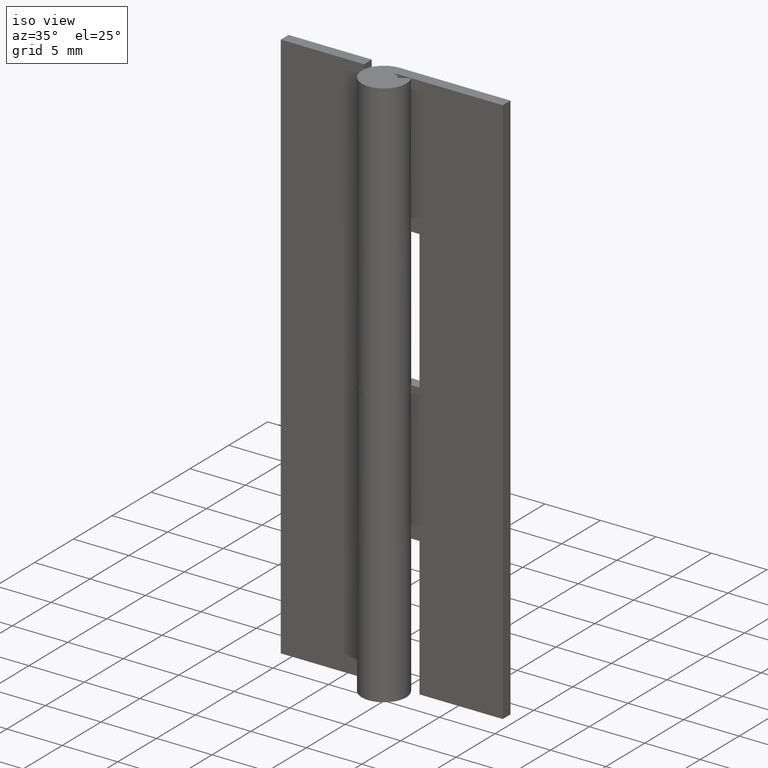
[diagram: clean part render]
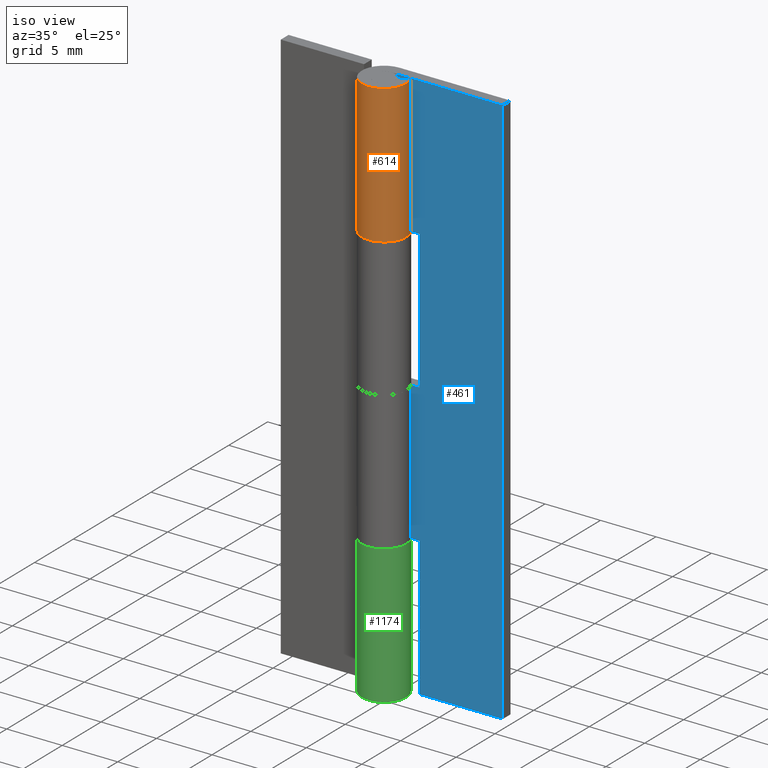
[diagram: same view with three faces highlighted in distinct colors, each labeled with its STEP entity id]
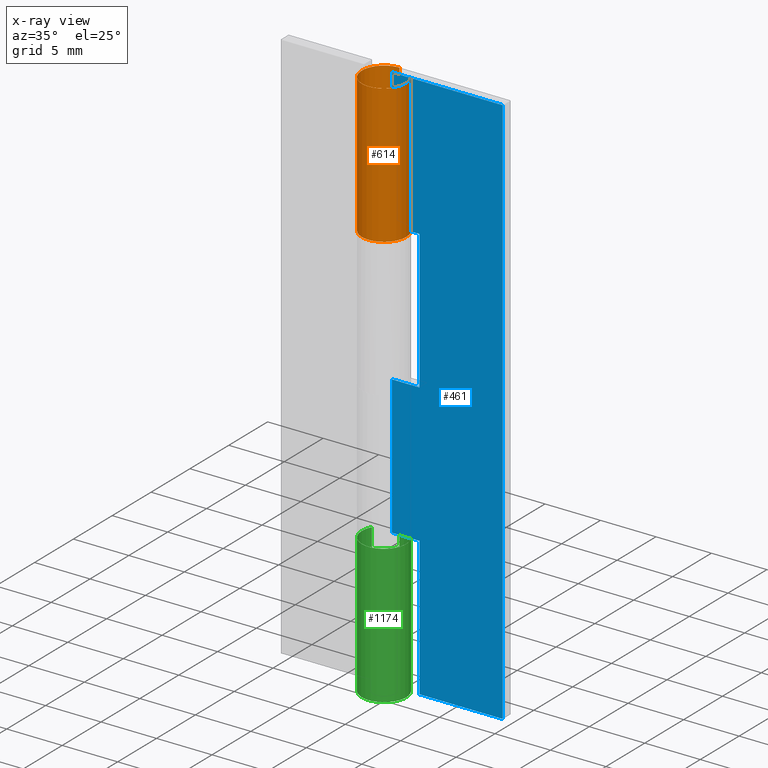
[diagram: x-ray of the same camera — body ghosted, the three highlighted faces saturated]
A machine part, iso view with three faces highlighted in distinct colors.
The next image is the same camera in x-ray (body ghosted, the three faces saturated) — at least one of them is partly hidden behind the body in this view.
Their STEP definitions:

[orange] entity #614 — the highlighted face is a freeform B-spline surface patch.
#49=CARTESIAN_POINT('',(0.0,2.0,37.500000000000000));
#50=VERTEX_POINT('',#49);
#93=CARTESIAN_POINT('',(1.759971590679805,0.950000000000000,37.500000000000000));
#94=VERTEX_POINT('',#93);
#100=CARTESIAN_POINT('',(0.0,2.0,37.500000000000000));
#101=CARTESIAN_POINT('',(-1.523311426391113,2.000000000000000,37.500000000000000));
#102=CARTESIAN_POINT('',(-1.928096575312494,0.531454227820452,37.500000000000000));
#103=CARTESIAN_POINT('',(-2.332881724233875,-0.937091544359096,37.500000000000000));
#104=CARTESIAN_POINT('',(-1.024695076595960,-1.717556403731767,37.500000000000000));
#105=CARTESIAN_POINT('',(0.283491571041954,-2.498021263104437,37.500000000000000));
#106=CARTESIAN_POINT('',(1.383518044628768,-1.444256840103792,37.500000000000000));
#107=CARTESIAN_POINT('',(2.483544518215583,-0.390492417103146,37.500000000000000));
#108=CARTESIAN_POINT('',(1.759971590679805,0.949999999999999,37.500000000000000));
#116=(BOUNDED_CURVE()B_SPLINE_CURVE(2,(#100,#101,#102,#103,#104,#105,#106,#107,#108),.UNSPECIFIED.,.F.,.U.)B_SPLINE_CURVE_WITH_KNOTS((3,2,2,2,3),(0.0,0.250000000000000,0.500000000000000,0.750000000000000,1.0),.UNSPECIFIED.)CURVE()GEOMETRIC_REPRESENTATION_ITEM()RATIONAL_B_SPLINE_CURVE((1.0,0.795527219493534,1.0,0.795527219493534,1.0,0.795527219493534,1.0,0.795527219493534,1.0))REPRESENTATION_ITEM(''));
#117=EDGE_CURVE('',#50,#94,#116,.T.);
#396=CARTESIAN_POINT('',(0.0,2.0,50.0));
#397=VERTEX_POINT('',#396);
#403=CARTESIAN_POINT('',(1.759971590679805,0.950000000000000,50.0));
#404=VERTEX_POINT('',#403);
#405=CARTESIAN_POINT('',(0.0,2.0,50.0));
#406=CARTESIAN_POINT('',(-1.523311426391113,2.000000000000000,50.000000000000007));
#407=CARTESIAN_POINT('',(-1.928096575312494,0.531454227820452,50.0));
#408=CARTESIAN_POINT('',(-2.332881724233873,-0.937091544359094,50.000000000000007));
#409=CARTESIAN_POINT('',(-1.024695076595961,-1.717556403731766,50.0));
#410=CARTESIAN_POINT('',(0.283491571041951,-2.498021263104438,50.000000000000007));
#411=CARTESIAN_POINT('',(1.383518044628767,-1.444256840103794,50.0));
#412=CARTESIAN_POINT('',(2.483544518215582,-0.390492417103149,50.000000000000007));
#413=CARTESIAN_POINT('',(1.759971590679806,0.949999999999997,50.0));
#421=(BOUNDED_CURVE()B_SPLINE_CURVE(2,(#405,#406,#407,#408,#409,#410,#411,#412,#413),.UNSPECIFIED.,.F.,.U.)B_SPLINE_CURVE_WITH_KNOTS((3,2,2,2,3),(0.0,0.250000000000000,0.500000000000000,0.750000000000000,1.0),.UNSPECIFIED.)CURVE()GEOMETRIC_REPRESENTATION_ITEM()RATIONAL_B_SPLINE_CURVE((1.0,0.795527219493534,1.0,0.795527219493534,1.0,0.795527219493534,1.0,0.795527219493534,1.0))REPRESENTATION_ITEM(''));
#422=EDGE_CURVE('',#397,#404,#421,.T.);
#491=CARTESIAN_POINT('',(0.0,2.0,50.0));
#492=CARTESIAN_POINT('',(0.0,2.0,37.500000000000000));
#493=QUASI_UNIFORM_CURVE('',1,(#491,#492),.UNSPECIFIED.,.F.,.U.);
#494=EDGE_CURVE('',#397,#50,#493,.T.);
#542=CARTESIAN_POINT('',(1.759971590679805,0.950000000000000,50.0));
#543=CARTESIAN_POINT('',(1.759971590679805,0.950000000000000,37.500000000000000));
#544=QUASI_UNIFORM_CURVE('',1,(#542,#543),.UNSPECIFIED.,.F.,.U.);
#545=EDGE_CURVE('',#404,#94,#544,.T.);
#586=CARTESIAN_POINT('',(0.017453070996746,1.999923846128342,50.312500000000007));
#587=CARTESIAN_POINT('',(0.017453070996746,1.999923846128342,37.179687499999993));
#588=CARTESIAN_POINT('',(-2.394320411595831,2.020971074452185,50.312500000000007));
#589=CARTESIAN_POINT('',(-2.394320411595831,2.020971074452185,37.179687499999986));
#590=CARTESIAN_POINT('',(-1.968596930263859,-0.353024257177478,50.312500000000007));
#591=CARTESIAN_POINT('',(-1.968596930263859,-0.353024257177478,37.179687499999993));
#592=CARTESIAN_POINT('',(-1.542873448931887,-2.727019588807141,50.312500000000007));
#593=CARTESIAN_POINT('',(-1.542873448931887,-2.727019588807141,37.179687499999986));
#594=CARTESIAN_POINT('',(0.711301523629752,-1.869237850697977,50.312500000000007));
#595=CARTESIAN_POINT('',(0.711301523629752,-1.869237850697977,37.179687499999993));
#596=CARTESIAN_POINT('',(2.965476496191392,-1.011456112588814,50.312500000000007));
#597=CARTESIAN_POINT('',(2.965476496191392,-1.011456112588814,37.179687499999986));
#598=CARTESIAN_POINT('',(1.705280328708186,1.044997129431896,50.312500000000007));
#599=CARTESIAN_POINT('',(1.705280328708186,1.044997129431896,37.179687499999993));
#607=(BOUNDED_SURFACE()B_SPLINE_SURFACE(1,2,((#586,#588,#590,#592,#594,#596,#598),(#587,#589,#591,#593,#595,#597,#599)),.UNSPECIFIED.,.F.,.F.,.U.)B_SPLINE_SURFACE_WITH_KNOTS((2,2),(3,2,2,3),(0.0,13.132812500000011),(0.0,3.758831008106936,7.517662016213873,11.276493024320811),.UNSPECIFIED.)GEOMETRIC_REPRESENTATION_ITEM()RATIONAL_B_SPLINE_SURFACE(((1.0,0.638320090924328,1.0,0.638320090924328,1.0,0.638320090924328,1.0),(1.0,0.638320090924328,1.0,0.638320090924328,1.0,0.638320090924328,1.0)))REPRESENTATION_ITEM('')SURFACE());
#608=ORIENTED_EDGE('',*,*,#494,.T.);
#609=ORIENTED_EDGE('',*,*,#117,.T.);
#610=ORIENTED_EDGE('',*,*,#545,.F.);
#611=ORIENTED_EDGE('',*,*,#422,.F.);
#612=EDGE_LOOP('',(#608,#609,#610,#611));
#613=FACE_OUTER_BOUND('',#612,.T.);
#614=ADVANCED_FACE('',(#613),#607,.T.);

[blue] entity #461 — the highlighted face is a freeform B-spline surface patch.
#58=CARTESIAN_POINT('',(2.500000000000000,1.0,37.500000000000000));
#59=VERTEX_POINT('',#58);
#65=CARTESIAN_POINT('',(-1.224606E-016,1.0,37.500000000000000));
#66=VERTEX_POINT('',#65);
#67=CARTESIAN_POINT('',(-1.224606E-016,1.0,37.500000000000000));
#68=CARTESIAN_POINT('',(2.500000000000000,1.0,37.500000000000000));
#69=QUASI_UNIFORM_CURVE('',1,(#67,#68),.UNSPECIFIED.,.F.,.U.);
#70=EDGE_CURVE('',#66,#59,#69,.T.);
#157=CARTESIAN_POINT('',(-1.224606E-016,1.0,25.0));
#158=VERTEX_POINT('',#157);
#178=CARTESIAN_POINT('',(2.500000000000000,1.0,25.0));
#179=VERTEX_POINT('',#178);
#180=CARTESIAN_POINT('',(2.500000000000000,1.0,25.0));
#181=CARTESIAN_POINT('',(-1.224606E-016,1.0,25.0));
#182=QUASI_UNIFORM_CURVE('',1,(#180,#181),.UNSPECIFIED.,.F.,.U.);
#183=EDGE_CURVE('',#179,#158,#182,.T.);
#212=CARTESIAN_POINT('',(2.500000000000000,1.0,37.500000000000000));
#213=CARTESIAN_POINT('',(2.500000000000000,1.0,25.0));
#214=QUASI_UNIFORM_CURVE('',1,(#212,#213),.UNSPECIFIED.,.F.,.U.);
#215=EDGE_CURVE('',#59,#179,#214,.T.);
#225=CARTESIAN_POINT('',(2.500000000000000,1.0,12.500000000000000));
#226=VERTEX_POINT('',#225);
#241=CARTESIAN_POINT('',(2.500000000000000,1.0,0.0));
#242=VERTEX_POINT('',#241);
#248=CARTESIAN_POINT('',(2.500000000000000,1.0,12.500000000000000));
#249=CARTESIAN_POINT('',(2.500000000000000,1.0,0.0));
#250=QUASI_UNIFORM_CURVE('',1,(#248,#249),.UNSPECIFIED.,.F.,.U.);
#251=EDGE_CURVE('',#226,#242,#250,.T.);
#269=CARTESIAN_POINT('',(-1.224606E-016,1.0,12.500000000000000));
#270=VERTEX_POINT('',#269);
#271=CARTESIAN_POINT('',(-1.224606E-016,1.0,12.500000000000000));
#272=CARTESIAN_POINT('',(2.500000000000000,1.0,12.500000000000000));
#273=QUASI_UNIFORM_CURVE('',1,(#271,#272),.UNSPECIFIED.,.F.,.U.);
#274=EDGE_CURVE('',#270,#226,#273,.T.);
#331=CARTESIAN_POINT('',(10.0,1.0,0.0));
#332=VERTEX_POINT('',#331);
#333=CARTESIAN_POINT('',(2.500000000000000,1.0,0.0));
#334=CARTESIAN_POINT('',(10.0,1.0,0.0));
#335=QUASI_UNIFORM_CURVE('',1,(#333,#334),.UNSPECIFIED.,.F.,.U.);
#336=EDGE_CURVE('',#242,#332,#335,.T.);
#359=CARTESIAN_POINT('',(-1.224606E-016,1.0,50.0));
#360=VERTEX_POINT('',#359);
#382=CARTESIAN_POINT('',(10.0,1.0,50.0));
#383=VERTEX_POINT('',#382);
#384=CARTESIAN_POINT('',(-1.224606E-016,1.0,50.0));
#385=CARTESIAN_POINT('',(10.0,1.0,50.0));
#386=QUASI_UNIFORM_CURVE('',1,(#384,#385),.UNSPECIFIED.,.F.,.U.);
#387=EDGE_CURVE('',#360,#383,#386,.T.);
#432=CARTESIAN_POINT('',(-0.499499980618060,1.0,-2.497499903090299));
#433=CARTESIAN_POINT('',(-0.499499980618060,1.0,52.497501244194808));
#434=CARTESIAN_POINT('',(10.499500248838959,1.0,-2.497499903090299));
#435=CARTESIAN_POINT('',(10.499500248838959,1.0,52.497501244194808));
#436=B_SPLINE_SURFACE_WITH_KNOTS('',1,1,((#432,#434),(#433,#435)),.UNSPECIFIED.,.F.,.F.,.U.,(2,2),(2,2),(0.0,54.995001147285109),(0.0,10.999000229457019),.UNSPECIFIED.);
#437=ORIENTED_EDGE('',*,*,#215,.T.);
#438=ORIENTED_EDGE('',*,*,#183,.T.);
#439=CARTESIAN_POINT('',(-1.224606E-016,1.0,25.0));
#440=CARTESIAN_POINT('',(-1.224606E-016,1.0,12.500000000000000));
#441=QUASI_UNIFORM_CURVE('',1,(#439,#440),.UNSPECIFIED.,.F.,.U.);
#442=EDGE_CURVE('',#158,#270,#441,.T.);
#443=ORIENTED_EDGE('',*,*,#442,.T.);
#444=ORIENTED_EDGE('',*,*,#274,.T.);
#445=ORIENTED_EDGE('',*,*,#251,.T.);
#446=ORIENTED_EDGE('',*,*,#336,.T.);
#447=CARTESIAN_POINT('',(10.0,1.0,50.0));
#448=CARTESIAN_POINT('',(10.0,1.0,0.0));
#449=QUASI_UNIFORM_CURVE('',1,(#447,#448),.UNSPECIFIED.,.F.,.U.);
#450=EDGE_CURVE('',#383,#332,#449,.T.);
#451=ORIENTED_EDGE('',*,*,#450,.F.);
#452=ORIENTED_EDGE('',*,*,#387,.F.);
#453=CARTESIAN_POINT('',(-1.224606E-016,1.0,50.0));
#454=CARTESIAN_POINT('',(-1.224606E-016,1.0,37.500000000000000));
#455=QUASI_UNIFORM_CURVE('',1,(#453,#454),.UNSPECIFIED.,.F.,.U.);
#456=EDGE_CURVE('',#360,#66,#455,.T.);
#457=ORIENTED_EDGE('',*,*,#456,.T.);
#458=ORIENTED_EDGE('',*,*,#70,.T.);
#459=EDGE_LOOP('',(#437,#438,#443,#444,#445,#446,#451,#452,#457,#458));
#460=FACE_OUTER_BOUND('',#459,.T.);
#461=ADVANCED_FACE('',(#460),#436,.F.);

[green] entity #1174 — the highlighted face is a freeform B-spline surface patch.
#892=CARTESIAN_POINT('',(0.0,2.0,12.500000000000000));
#893=VERTEX_POINT('',#892);
#934=CARTESIAN_POINT('',(-1.759971590679805,0.950000000000000,12.500000000000000));
#935=VERTEX_POINT('',#934);
#941=CARTESIAN_POINT('',(0.0,2.0,12.500000000000000));
#942=CARTESIAN_POINT('',(1.523311426391113,2.000000000000000,12.500000000000002));
#943=CARTESIAN_POINT('',(1.928096575312494,0.531454227820452,12.500000000000000));
#944=CARTESIAN_POINT('',(2.332881724233873,-0.937091544359094,12.500000000000002));
#945=CARTESIAN_POINT('',(1.024695076595961,-1.717556403731766,12.500000000000000));
#946=CARTESIAN_POINT('',(-0.283491571041951,-2.498021263104438,12.500000000000002));
#947=CARTESIAN_POINT('',(-1.383518044628767,-1.444256840103794,12.500000000000000));
#948=CARTESIAN_POINT('',(-2.483544518215582,-0.390492417103149,12.500000000000002));
#949=CARTESIAN_POINT('',(-1.759971590679806,0.949999999999997,12.500000000000000));
#957=(BOUNDED_CURVE()B_SPLINE_CURVE(2,(#941,#942,#943,#944,#945,#946,#947,#948,#949),.UNSPECIFIED.,.F.,.U.)B_SPLINE_CURVE_WITH_KNOTS((3,2,2,2,3),(0.0,0.250000000000000,0.500000000000000,0.750000000000000,1.0),.UNSPECIFIED.)CURVE()GEOMETRIC_REPRESENTATION_ITEM()RATIONAL_B_SPLINE_CURVE((1.0,0.795527219493534,1.0,0.795527219493534,1.0,0.795527219493534,1.0,0.795527219493534,1.0))REPRESENTATION_ITEM(''));
#958=EDGE_CURVE('',#893,#935,#957,.T.);
#997=CARTESIAN_POINT('',(0.0,2.0,0.0));
#998=VERTEX_POINT('',#997);
#1004=CARTESIAN_POINT('',(-1.759971590679805,0.950000000000000,0.0));
#1005=VERTEX_POINT('',#1004);
#1006=CARTESIAN_POINT('',(0.0,2.0,0.0));
#1007=CARTESIAN_POINT('',(1.523311426391113,2.000000000000000,0.0));
#1008=CARTESIAN_POINT('',(1.928096575312494,0.531454227820452,0.0));
#1009=CARTESIAN_POINT('',(2.332881724233873,-0.937091544359094,0.0));
#1010=CARTESIAN_POINT('',(1.024695076595961,-1.717556403731766,0.0));
#1011=CARTESIAN_POINT('',(-0.283491571041951,-2.498021263104438,0.0));
#1012=CARTESIAN_POINT('',(-1.383518044628767,-1.444256840103794,0.0));
#1013=CARTESIAN_POINT('',(-2.483544518215582,-0.390492417103149,0.0));
#1014=CARTESIAN_POINT('',(-1.759971590679806,0.949999999999997,0.0));
#1022=(BOUNDED_CURVE()B_SPLINE_CURVE(2,(#1006,#1007,#1008,#1009,#1010,#1011,#1012,#1013,#1014),.UNSPECIFIED.,.F.,.U.)B_SPLINE_CURVE_WITH_KNOTS((3,2,2,2,3),(0.0,0.250000000000000,0.500000000000000,0.750000000000000,1.0),.UNSPECIFIED.)CURVE()GEOMETRIC_REPRESENTATION_ITEM()RATIONAL_B_SPLINE_CURVE((1.0,0.795527219493534,1.0,0.795527219493534,1.0,0.795527219493534,1.0,0.795527219493534,1.0))REPRESENTATION_ITEM(''));
#1023=EDGE_CURVE('',#998,#1005,#1022,.T.);
#1131=CARTESIAN_POINT('',(-1.759971590679805,0.950000000000000,12.500000000000000));
#1132=CARTESIAN_POINT('',(-1.759971590679805,0.950000000000000,0.0));
#1133=QUASI_UNIFORM_CURVE('',1,(#1131,#1132),.UNSPECIFIED.,.F.,.U.);
#1134=EDGE_CURVE('',#935,#1005,#1133,.T.);
#1142=CARTESIAN_POINT('',(-1.723258320883051,1.015076725921408,12.812500000000000));
#1143=CARTESIAN_POINT('',(-1.723258320883051,1.015076725921408,-0.320312500000000));
#1144=CARTESIAN_POINT('',(-2.969344769301742,-1.100358281051034,12.812500000000002));
#1145=CARTESIAN_POINT('',(-2.969344769301742,-1.100358281051034,-0.320312500000000));
#1146=CARTESIAN_POINT('',(-0.645632757753657,-1.892923226682848,12.812500000000000));
#1147=CARTESIAN_POINT('',(-0.645632757753657,-1.892923226682848,-0.320312500000000));
#1148=CARTESIAN_POINT('',(1.678079253794428,-2.685488172314661,12.812500000000002));
#1149=CARTESIAN_POINT('',(1.678079253794428,-2.685488172314661,-0.320312500000000));
#1150=CARTESIAN_POINT('',(1.984374898665018,-0.249512046899941,12.812500000000000));
#1151=CARTESIAN_POINT('',(1.984374898665018,-0.249512046899941,-0.320312500000000));
#1152=CARTESIAN_POINT('',(2.290670543535608,2.186464078514781,12.812500000000002));
#1153=CARTESIAN_POINT('',(2.290670543535608,2.186464078514781,-0.320312500000000));
#1154=CARTESIAN_POINT('',(-0.156918191455691,1.993834667466256,12.812500000000000));
#1155=CARTESIAN_POINT('',(-0.156918191455691,1.993834667466256,-0.320312500000000));
#1163=(BOUNDED_SURFACE()B_SPLINE_SURFACE(1,2,((#1142,#1144,#1146,#1148,#1150,#1152,#1154),(#1143,#1145,#1147,#1149,#1151,#1153,#1155)),.UNSPECIFIED.,.F.,.F.,.U.)B_SPLINE_SURFACE_WITH_KNOTS((2,2),(3,2,2,3),(0.0,13.132812500000000),(0.0,3.801531476131832,7.603062952263665,11.404594428395500),.UNSPECIFIED.)GEOMETRIC_REPRESENTATION_ITEM()RATIONAL_B_SPLINE_SURFACE(((1.0,0.631578351302498,1.0,0.631578351302498,1.0,0.631578351302498,1.0),(1.0,0.631578351302498,1.0,0.631578351302498,1.0,0.631578351302498,1.0)))REPRESENTATION_ITEM('')SURFACE());
#1164=ORIENTED_EDGE('',*,*,#958,.T.);
#1165=ORIENTED_EDGE('',*,*,#1134,.T.);
#1166=ORIENTED_EDGE('',*,*,#1023,.F.);
#1167=CARTESIAN_POINT('',(0.0,2.0,12.500000000000000));
#1168=CARTESIAN_POINT('',(0.0,2.0,0.0));
#1169=QUASI_UNIFORM_CURVE('',1,(#1167,#1168),.UNSPECIFIED.,.F.,.U.);
#1170=EDGE_CURVE('',#893,#998,#1169,.T.);
#1171=ORIENTED_EDGE('',*,*,#1170,.F.);
#1172=EDGE_LOOP('',(#1164,#1165,#1166,#1171));
#1173=FACE_OUTER_BOUND('',#1172,.T.);
#1174=ADVANCED_FACE('',(#1173),#1163,.T.);